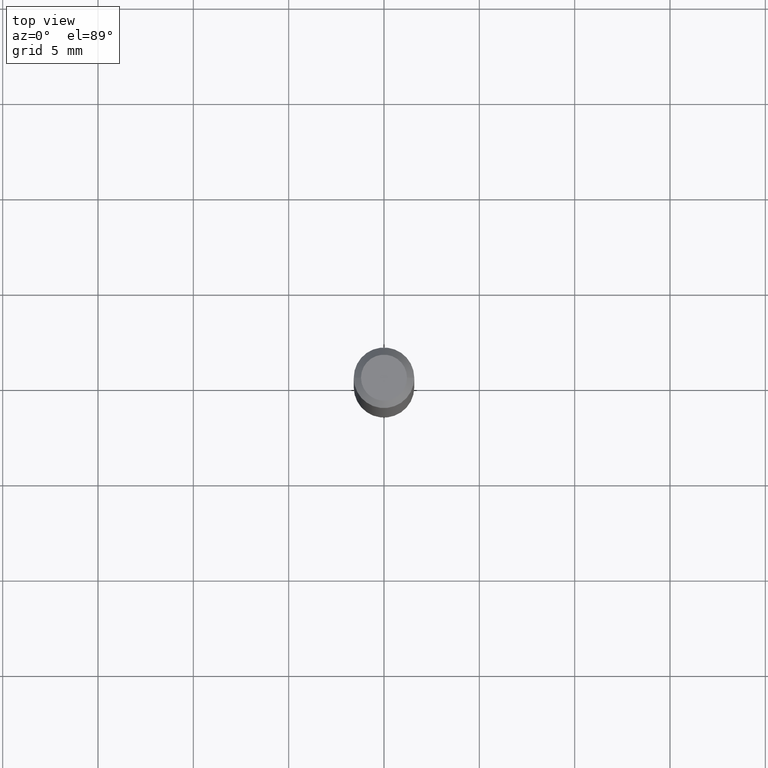
[diagram: clean part render]
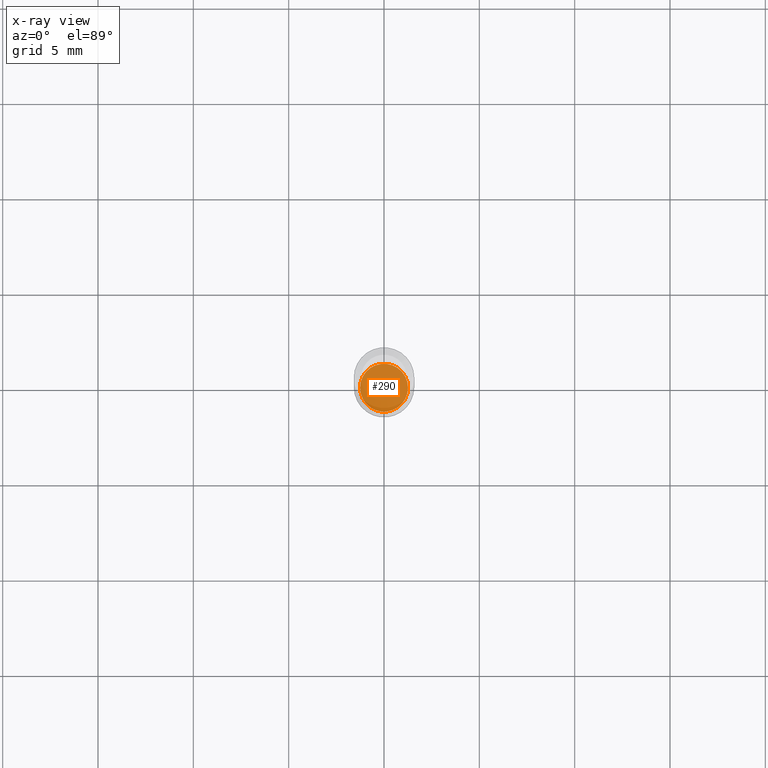
[diagram: x-ray — body ghosted, one internal face saturated and labeled with its STEP entity id]
A machine part, top view, then the same camera in x-ray: the body is ghosted and one INTERNAL B-rep face — a face not visible from any outside direction — is saturated and labeled: STEP entity #290.
In plain terms, the highlighted planar face has unit normal (-0, 0, 1).
Its self-contained STEP definition (entity closure, byte-faithful):
#2 = CARTESIAN_POINT ( 'NONE',  ( 0.04949999999999997458, -4.535434259157245343E-15, -1.200000000000000178 ) ) ;
#25 = DIRECTION ( 'NONE',  ( -2.438088387897960049E-29, 3.491481338843145188E-15, 1.000000000000000000 ) ) ;
#28 = AXIS2_PLACEMENT_3D ( 'NONE', #82, #356, #162 ) ;
#34 = VERTEX_POINT ( 'NONE', #2 ) ;
#48 = ORIENTED_EDGE ( 'NONE', *, *, #110, .F. ) ;
#66 = DIRECTION ( 'NONE',  ( -2.445468806185136597E-29, 3.491481338843145583E-15, 1.000000000000000000 ) ) ;
#82 = CARTESIAN_POINT ( 'NONE',  ( 2.934562567422164701E-29, -4.189777606611775804E-15, -1.200000000000000178 ) ) ;
#87 = EDGE_LOOP ( 'NONE', ( #48, #137 ) ) ;
#100 = CARTESIAN_POINT ( 'NONE',  ( -0.04949999999999997458, -3.835409725236414304E-15, -1.200000000000000178 ) ) ;
#110 = EDGE_CURVE ( 'NONE', #34, #270, #255, .T. ) ;
#137 = ORIENTED_EDGE ( 'NONE', *, *, #436, .F. ) ;
#145 = CARTESIAN_POINT ( 'NONE',  ( 2.934562567422164701E-29, -4.189777606611775804E-15, -1.200000000000000178 ) ) ;
#162 = DIRECTION ( 'NONE',  ( 1.000000000000000000, -6.982962677686267499E-15, 0.000000000000000000 ) ) ;
#182 = CARTESIAN_POINT ( 'NONE',  ( 2.934562567422164701E-29, -4.189777606611775804E-15, -1.200000000000000178 ) ) ;
#255 = CIRCLE ( 'NONE', #28, 0.04949999999999997458 ) ;
#270 = VERTEX_POINT ( 'NONE', #100 ) ;
#277 = AXIS2_PLACEMENT_3D ( 'NONE', #182, #66, #338 ) ;
#290 = ADVANCED_FACE ( 'NONE', ( #333 ), #500, .F. ) ;
#333 = FACE_OUTER_BOUND ( 'NONE', #87, .T. ) ;
#338 = DIRECTION ( 'NONE',  ( 1.000000000000000000, -6.982962677686267499E-15, 0.000000000000000000 ) ) ;
#356 = DIRECTION ( 'NONE',  ( -2.445468806185136597E-29, 3.491481338843145583E-15, 1.000000000000000000 ) ) ;
#383 = DIRECTION ( 'NONE',  ( 1.000000000000000000, -6.982962677686265922E-15, 4.876176775795935793E-29 ) ) ;
#421 = AXIS2_PLACEMENT_3D ( 'NONE', #145, #25, #383 ) ;
#426 = CIRCLE ( 'NONE', #277, 0.04949999999999997458 ) ;
#436 = EDGE_CURVE ( 'NONE', #270, #34, #426, .T. ) ;
#500 = PLANE ( 'NONE',  #421 ) ;